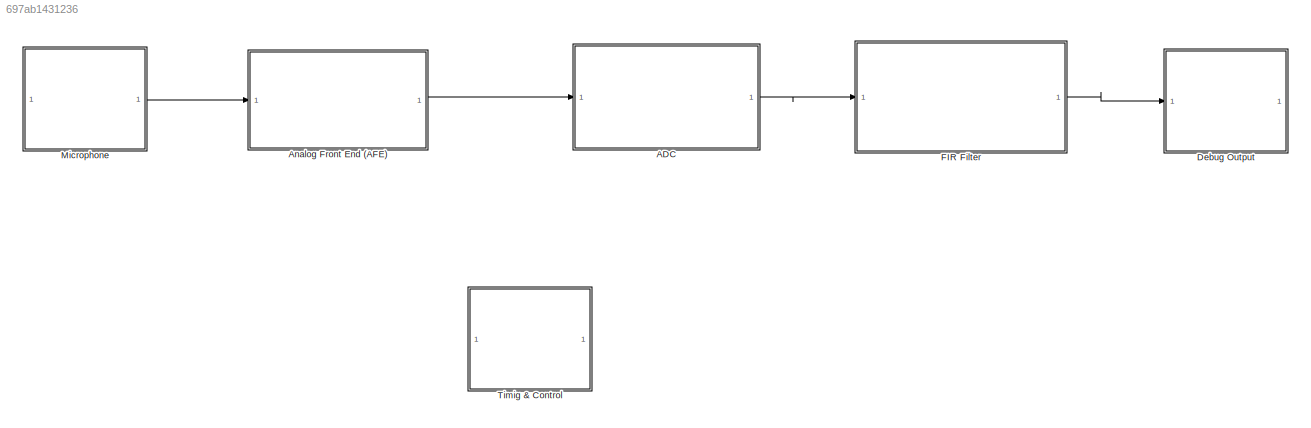
MODEL slx_697ab1431236
KIND model
CONFIG AbsTol = auto
CONFIG EnableMultiTasking = off
CONFIG FixedStep = auto
CONFIG MaxStep = auto
CONFIG MinStep = auto
CONFIG RelTol = 1e-3
CONFIG SampleTimeConstraint = Unconstrained
CONFIG SolverName = VariableStepAuto
CONFIG StartTime = 0.0
CONFIG StopTime = 10.0
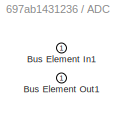
BLOCK [SubSystem] ADC
  PortSchema = {"entries":[{"content":{"headerSize":26,"margin":15,"minimumSpacing":25,"sides":[{"content":{"connectorIds":["In1"]},"type":"ConnectorPlacement.EquallySpacedRectSide","uuid":"994861de-6d69-4d68-a178-d0521cde0fd8"},{"content":{"connectorIds":["Out1"],"side":"RIGHT"},"type":"ConnectorPlacement.EquallySpacedRectSide","uuid":"1da4d04f-7762-4bd1-96dc-038b62a5db96"},{"content":{"side":"TOP"},"type":"Con...<+270ch>
BLOCK [Inport] ADC/Bus Element In1
BLOCK [Outport] ADC/Bus Element Out1
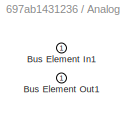
BLOCK [SubSystem] Analog Front End (AFE)
  PortSchema = {"entries":[{"content":{"headerSize":26,"margin":15,"minimumSpacing":25,"sides":[{"content":{"connectorIds":["In1"]},"type":"ConnectorPlacement.EquallySpacedRectSide","uuid":"994861de-6d69-4d68-a178-d0521cde0fd8"},{"content":{"connectorIds":["Out1"],"side":"RIGHT"},"type":"ConnectorPlacement.EquallySpacedRectSide","uuid":"1da4d04f-7762-4bd1-96dc-038b62a5db96"},{"content":{"side":"TOP"},"type":"Con...<+270ch>
BLOCK [Inport] Analog Front End (AFE)/Bus Element In1
BLOCK [Outport] Analog Front End (AFE)/Bus Element Out1
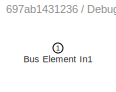
BLOCK [SubSystem] Debug Output
  PortSchema = {"entries":[{"content":{"headerSize":26,"margin":15,"minimumSpacing":25,"sides":[{"content":{"connectorIds":["In1"]},"type":"ConnectorPlacement.EquallySpacedRectSide","uuid":"994861de-6d69-4d68-a178-d0521cde0fd8"},{"content":{"side":"RIGHT"},"type":"ConnectorPlacement.EquallySpacedRectSide","uuid":"1da4d04f-7762-4bd1-96dc-038b62a5db96"},{"content":{"side":"TOP"},"type":"ConnectorPlacement.EquallyS...<+246ch>
BLOCK [Inport] Debug Output/Bus Element In1
BLOCK [ModelReference] FIR Filter
  ModelNameDialog = FIRFilter
  ModelReferenceVersion = 1.2
  PortSchema = {"entries":[{"content":{"headerSize":38,"margin":15,"minimumSpacing":25,"sides":[{"content":{"connectorIds":["In1"]},"type":"ConnectorPlacement.EquallySpacedRectSide","uuid":"994861de-6d69-4d68-a178-d0521cde0fd8"},{"content":{"connectorIds":["Out1"],"side":"RIGHT"},"type":"ConnectorPlacement.EquallySpacedRectSide","uuid":"1da4d04f-7762-4bd1-96dc-038b62a5db96"},{"content":{"side":"TOP"},"type":"Con...<+270ch>
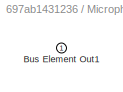
BLOCK [SubSystem] Microphone
  PortSchema = {"entries":[{"content":{"headerSize":26,"margin":15,"minimumSpacing":25,"sides":[{"content":{},"type":"ConnectorPlacement.EquallySpacedRectSide","uuid":"994861de-6d69-4d68-a178-d0521cde0fd8"},{"content":{"connectorIds":["Out1"],"side":"RIGHT"},"type":"ConnectorPlacement.EquallySpacedRectSide","uuid":"1da4d04f-7762-4bd1-96dc-038b62a5db96"},{"content":{"side":"TOP"},"type":"ConnectorPlacement.Equall...<+248ch>
BLOCK [Outport] Microphone/Bus Element Out1
BLOCK [SubSystem] Timig & Control
  PortSchema = {"entries":[{"content":{"headerSize":26,"margin":15,"minimumSpacing":25,"sides":[{"content":{},"type":"ConnectorPlacement.EquallySpacedRectSide","uuid":"994861de-6d69-4d68-a178-d0521cde0fd8"},{"content":{"side":"RIGHT"},"type":"ConnectorPlacement.EquallySpacedRectSide","uuid":"1da4d04f-7762-4bd1-96dc-038b62a5db96"},{"content":{"side":"TOP"},"type":"ConnectorPlacement.EquallySpacedRectSide","uuid":...<+224ch>
LINE ADC:1 -> FIR Filter:1
LINE Analog Front End (AFE):1 -> ADC:1
LINE FIR Filter:1 -> Debug Output:1
LINE Microphone:1 -> Analog Front End (AFE):1
